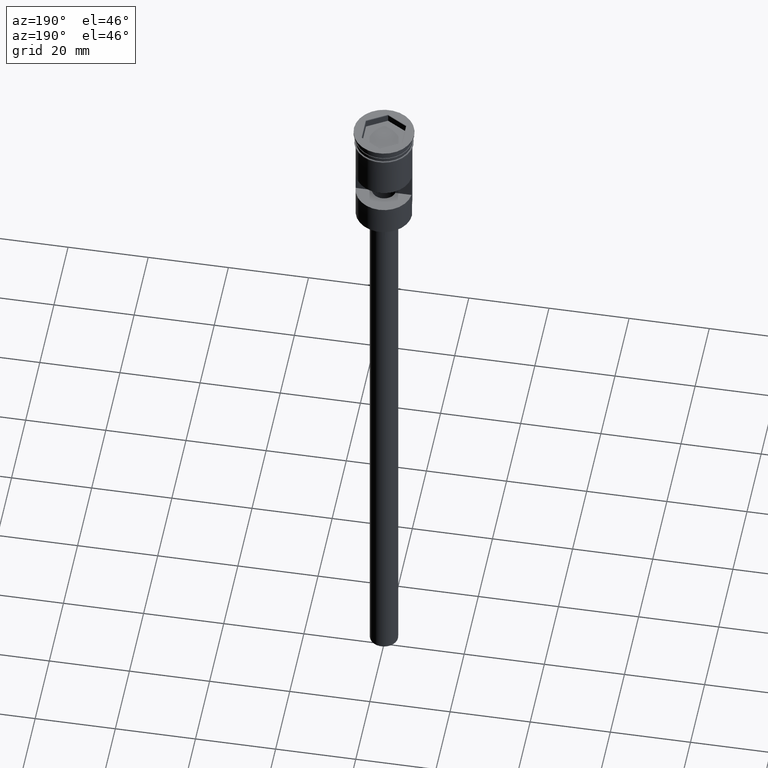
[diagram: clean part render]
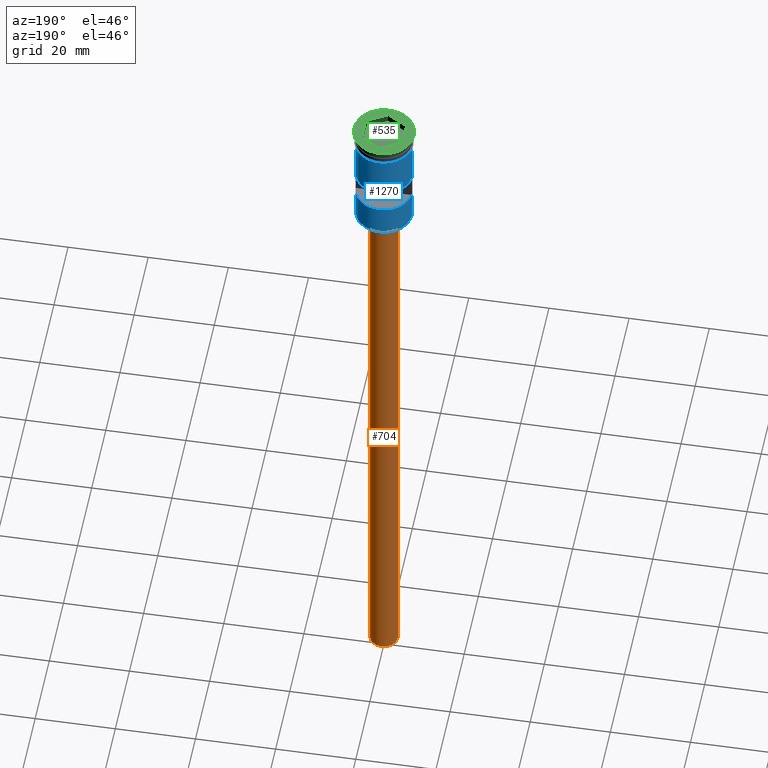
[diagram: same view with three faces highlighted in distinct colors, each labeled with its STEP entity id]
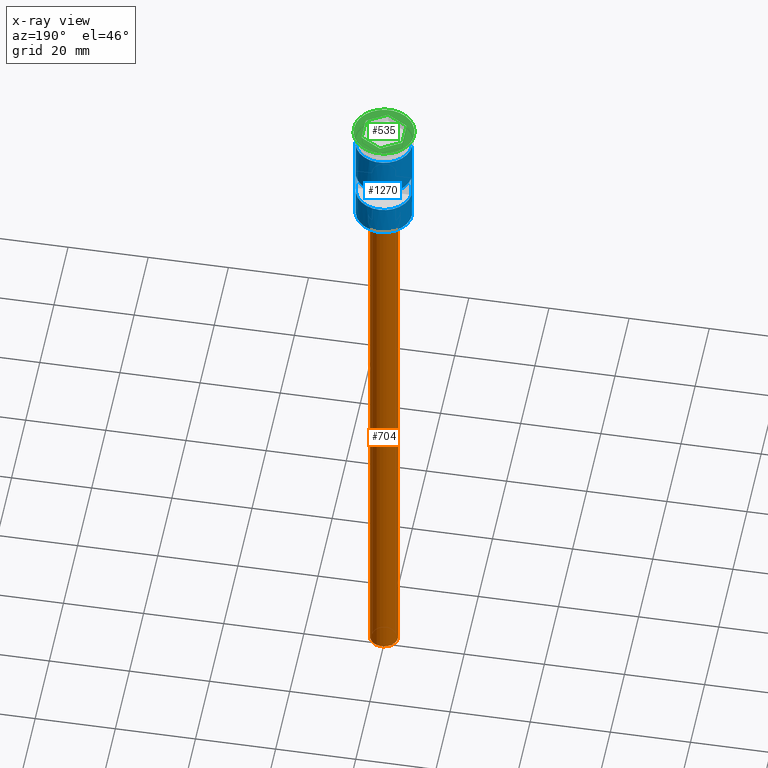
[diagram: x-ray of the same camera — body ghosted, the three highlighted faces saturated]
A machine part, auxiliary view with three faces highlighted in distinct colors.
The next image is the same camera in x-ray (body ghosted, the three faces saturated) — at least one of them is partly hidden behind the body in this view.
Their STEP definitions:

[orange] entity #704 — the highlighted cylindrical surface (edge-blend (fillet) strip) has radius 3.5 mm, axis along (-0, -0, 1).
#8 = CARTESIAN_POINT ( 'NONE',  ( 0.000000000000000000, 0.000000000000000000, -178.5000000000000000 ) ) ;
#28 = CYLINDRICAL_SURFACE ( 'NONE', #1307, 3.500000000000000444 ) ;
#30 = LINE ( 'NONE', #1141, #63 ) ;
#39 = EDGE_LOOP ( 'NONE', ( #1564, #598, #610, #1400 ) ) ;
#40 = AXIS2_PLACEMENT_3D ( 'NONE', #8, #1590, #226 ) ;
#63 = VECTOR ( 'NONE', #903, 1000.000000000000000 ) ;
#65 = FACE_OUTER_BOUND ( 'NONE', #39, .T. ) ;
#89 = EDGE_CURVE ( 'NONE', #1109, #631, #161, .T. ) ;
#123 = VERTEX_POINT ( 'NONE', #514 ) ;
#161 = CIRCLE ( 'NONE', #966, 3.500000000000000444 ) ;
#200 = CARTESIAN_POINT ( 'NONE',  ( 0.000000000000000000, 0.000000000000000000, -178.5000000000000000 ) ) ;
#226 = DIRECTION ( 'NONE',  ( -1.000000000000000000, 0.000000000000000000, 0.000000000000000000 ) ) ;
#230 = EDGE_CURVE ( 'NONE', #123, #631, #30, .T. ) ;
#380 = DIRECTION ( 'NONE',  ( 0.000000000000000000, 0.000000000000000000, -1.000000000000000000 ) ) ;
#389 = DIRECTION ( 'NONE',  ( 1.000000000000000000, 0.000000000000000000, 0.000000000000000000 ) ) ;
#463 = CARTESIAN_POINT ( 'NONE',  ( -3.500000000000000444, 4.286263797015737088E-16, -31.50000000000000000 ) ) ;
#506 = CARTESIAN_POINT ( 'NONE',  ( 0.000000000000000000, 0.000000000000000000, -31.50000000000000000 ) ) ;
#514 = CARTESIAN_POINT ( 'NONE',  ( 3.500000000000000444, 0.000000000000000000, -178.5000000000000000 ) ) ;
#531 = VECTOR ( 'NONE', #532, 1000.000000000000000 ) ;
#532 = DIRECTION ( 'NONE',  ( -0.000000000000000000, -0.000000000000000000, 1.000000000000000000 ) ) ;
#595 = EDGE_CURVE ( 'NONE', #1436, #123, #737, .T. ) ;
#598 = ORIENTED_EDGE ( 'NONE', *, *, #1023, .T. ) ;
#610 = ORIENTED_EDGE ( 'NONE', *, *, #89, .T. ) ;
#631 = VERTEX_POINT ( 'NONE', #1241 ) ;
#704 = ADVANCED_FACE ( 'NONE', ( #65 ), #28, .T. ) ;
#737 = CIRCLE ( 'NONE', #40, 3.500000000000000444 ) ;
#757 = LINE ( 'NONE', #907, #531 ) ;
#903 = DIRECTION ( 'NONE',  ( -0.000000000000000000, -0.000000000000000000, 1.000000000000000000 ) ) ;
#907 = CARTESIAN_POINT ( 'NONE',  ( -3.500000000000000444, 4.286263797015737088E-16, -178.5000000000000000 ) ) ;
#966 = AXIS2_PLACEMENT_3D ( 'NONE', #506, #380, #1135 ) ;
#1023 = EDGE_CURVE ( 'NONE', #1436, #1109, #757, .T. ) ;
#1109 = VERTEX_POINT ( 'NONE', #463 ) ;
#1135 = DIRECTION ( 'NONE',  ( -1.000000000000000000, 0.000000000000000000, 0.000000000000000000 ) ) ;
#1141 = CARTESIAN_POINT ( 'NONE',  ( 3.500000000000000444, 0.000000000000000000, -178.5000000000000000 ) ) ;
#1241 = CARTESIAN_POINT ( 'NONE',  ( 3.500000000000000444, 0.000000000000000000, -31.50000000000000000 ) ) ;
#1269 = DIRECTION ( 'NONE',  ( -0.000000000000000000, -0.000000000000000000, 1.000000000000000000 ) ) ;
#1307 = AXIS2_PLACEMENT_3D ( 'NONE', #200, #1269, #389 ) ;
#1400 = ORIENTED_EDGE ( 'NONE', *, *, #230, .F. ) ;
#1436 = VERTEX_POINT ( 'NONE', #1589 ) ;
#1564 = ORIENTED_EDGE ( 'NONE', *, *, #595, .F. ) ;
#1589 = CARTESIAN_POINT ( 'NONE',  ( -3.500000000000000444, 4.286263797015737088E-16, -178.5000000000000000 ) ) ;
#1590 = DIRECTION ( 'NONE',  ( 0.000000000000000000, 0.000000000000000000, -1.000000000000000000 ) ) ;

[blue] entity #1270 — the highlighted cylindrical surface (edge-blend (fillet) strip) has radius 7 mm, axis along (-0, -0, 1).
#18 = CIRCLE ( 'NONE', #145, 6.999999999999996447 ) ;
#35 = LINE ( 'NONE', #375, #1050 ) ;
#36 = CARTESIAN_POINT ( 'NONE',  ( 6.999999999999996447, 0.000000000000000000, 0.000000000000000000 ) ) ;
#38 = LINE ( 'NONE', #528, #137 ) ;
#75 = ORIENTED_EDGE ( 'NONE', *, *, #198, .F. ) ;
#84 = CARTESIAN_POINT ( 'NONE',  ( 6.999999999999999112, 0.000000000000000000, -3.799999999999998490 ) ) ;
#103 = VERTEX_POINT ( 'NONE', #130 ) ;
#112 = DIRECTION ( 'NONE',  ( 0.000000000000000000, 0.000000000000000000, -1.000000000000000000 ) ) ;
#129 = FACE_BOUND ( 'NONE', #1200, .T. ) ;
#130 = CARTESIAN_POINT ( 'NONE',  ( -6.974238309665074631, 0.5999999999999999778, -14.50000000000000178 ) ) ;
#132 = VERTEX_POINT ( 'NONE', #1112 ) ;
#137 = VECTOR ( 'NONE', #165, 1000.000000000000000 ) ;
#145 = AXIS2_PLACEMENT_3D ( 'NONE', #821, #1314, #1192 ) ;
#150 = LINE ( 'NONE', #283, #1071 ) ;
#152 = ORIENTED_EDGE ( 'NONE', *, *, #713, .F. ) ;
#158 = EDGE_CURVE ( 'NONE', #1091, #1430, #354, .T. ) ;
#165 = DIRECTION ( 'NONE',  ( -0.000000000000000000, -0.000000000000000000, 1.000000000000000000 ) ) ;
#198 = EDGE_CURVE ( 'NONE', #674, #103, #150, .T. ) ;
#248 = VECTOR ( 'NONE', #908, 1000.000000000000000 ) ;
#251 = LINE ( 'NONE', #511, #451 ) ;
#276 = ORIENTED_EDGE ( 'NONE', *, *, #323, .T. ) ;
#279 = DIRECTION ( 'NONE',  ( -0.000000000000000000, -0.000000000000000000, 1.000000000000000000 ) ) ;
#283 = CARTESIAN_POINT ( 'NONE',  ( -6.974238309665074631, 0.5999999999999999778, 0.000000000000000000 ) ) ;
#306 = CARTESIAN_POINT ( 'NONE',  ( -6.974238309665074631, 0.5999999999999999778, -20.50000000000000000 ) ) ;
#318 = ORIENTED_EDGE ( 'NONE', *, *, #953, .T. ) ;
#323 = EDGE_CURVE ( 'NONE', #1339, #811, #38, .T. ) ;
#344 = CARTESIAN_POINT ( 'NONE',  ( 0.000000000000000000, 0.000000000000000000, -28.29999999999999361 ) ) ;
#354 = LINE ( 'NONE', #1122, #969 ) ;
#373 = AXIS2_PLACEMENT_3D ( 'NONE', #978, #1348, #1111 ) ;
#375 = CARTESIAN_POINT ( 'NONE',  ( 6.999999999999993783, 8.572527594031465301E-16, -28.50000000000000000 ) ) ;
#377 = CARTESIAN_POINT ( 'NONE',  ( 6.974238309665075519, 0.5999999999999999778, -20.50000000000000000 ) ) ;
#388 = DIRECTION ( 'NONE',  ( 0.000000000000000000, -1.000000000000000000, 2.478176394252582620E-16 ) ) ;
#451 = VECTOR ( 'NONE', #279, 1000.000000000000000 ) ;
#476 = VERTEX_POINT ( 'NONE', #84 ) ;
#494 = CARTESIAN_POINT ( 'NONE',  ( -6.999999999999993783, 0.000000000000000000, -24.29999999999998295 ) ) ;
#504 = CYLINDRICAL_SURFACE ( 'NONE', #373, 6.999999999999996447 ) ;
#511 = CARTESIAN_POINT ( 'NONE',  ( -6.999999999999993783, 0.000000000000000000, -28.50000000000000000 ) ) ;
#528 = CARTESIAN_POINT ( 'NONE',  ( -6.999999999999996447, 8.572527594031468259E-16, 0.000000000000000000 ) ) ;
#536 = CARTESIAN_POINT ( 'NONE',  ( 0.000000000000000000, 0.000000000000000000, -14.50000000000000178 ) ) ;
#565 = EDGE_CURVE ( 'NONE', #132, #1319, #636, .T. ) ;
#632 = AXIS2_PLACEMENT_3D ( 'NONE', #1556, #813, #1386 ) ;
#636 = CIRCLE ( 'NONE', #1046, 6.999999999999996447 ) ;
#655 = LINE ( 'NONE', #36, #248 ) ;
#674 = VERTEX_POINT ( 'NONE', #306 ) ;
#692 = CIRCLE ( 'NONE', #1569, 6.999999999999996447 ) ;
#712 = CARTESIAN_POINT ( 'NONE',  ( -7.000000000000000000, 8.572527594031472204E-16, -3.799999999999998490 ) ) ;
#713 = EDGE_CURVE ( 'NONE', #476, #811, #816, .T. ) ;
#791 = CARTESIAN_POINT ( 'NONE',  ( 6.999999999999996447, 8.572527594031468259E-16, -24.29999999999998295 ) ) ;
#793 = DIRECTION ( 'NONE',  ( -0.000000000000000000, -0.000000000000000000, 1.000000000000000000 ) ) ;
#811 = VERTEX_POINT ( 'NONE', #712 ) ;
#813 = DIRECTION ( 'NONE',  ( -0.000000000000000000, -0.000000000000000000, 1.000000000000000000 ) ) ;
#816 = CIRCLE ( 'NONE', #632, 6.999999999999999112 ) ;
#821 = CARTESIAN_POINT ( 'NONE',  ( 0.000000000000000000, 0.000000000000000000, -20.50000000000000000 ) ) ;
#859 = CARTESIAN_POINT ( 'NONE',  ( -6.999999999999993783, 0.000000000000000000, -28.29999999999999361 ) ) ;
#864 = DIRECTION ( 'NONE',  ( -1.000000000000000000, 0.000000000000000000, 0.000000000000000000 ) ) ;
#887 = ORIENTED_EDGE ( 'NONE', *, *, #1193, .F. ) ;
#908 = DIRECTION ( 'NONE',  ( -0.000000000000000000, -0.000000000000000000, 1.000000000000000000 ) ) ;
#931 = ORIENTED_EDGE ( 'NONE', *, *, #1440, .F. ) ;
#953 = EDGE_CURVE ( 'NONE', #1319, #1339, #251, .T. ) ;
#963 = EDGE_CURVE ( 'NONE', #132, #1480, #35, .T. ) ;
#969 = VECTOR ( 'NONE', #112, 1000.000000000000000 ) ;
#970 = ORIENTED_EDGE ( 'NONE', *, *, #565, .T. ) ;
#978 = CARTESIAN_POINT ( 'NONE',  ( 0.000000000000000000, 0.000000000000000000, 0.000000000000000000 ) ) ;
#1046 = AXIS2_PLACEMENT_3D ( 'NONE', #344, #1470, #864 ) ;
#1050 = VECTOR ( 'NONE', #1281, 1000.000000000000000 ) ;
#1071 = VECTOR ( 'NONE', #793, 1000.000000000000000 ) ;
#1091 = VERTEX_POINT ( 'NONE', #1442 ) ;
#1111 = DIRECTION ( 'NONE',  ( 1.000000000000000000, 0.000000000000000000, 0.000000000000000000 ) ) ;
#1112 = CARTESIAN_POINT ( 'NONE',  ( 6.999999999999993783, 8.572527594031465301E-16, -28.29999999999999361 ) ) ;
#1115 = EDGE_LOOP ( 'NONE', ( #318, #276, #152, #1313, #1526, #970 ) ) ;
#1122 = CARTESIAN_POINT ( 'NONE',  ( 6.974238309665074631, 0.5999999999999999778, 0.000000000000000000 ) ) ;
#1192 = DIRECTION ( 'NONE',  ( 0.000000000000000000, 1.000000000000000000, 4.956352788505165240E-16 ) ) ;
#1193 = EDGE_CURVE ( 'NONE', #1430, #674, #18, .T. ) ;
#1200 = EDGE_LOOP ( 'NONE', ( #887, #1451, #931, #75 ) ) ;
#1256 = DIRECTION ( 'NONE',  ( -0.000000000000000000, -2.710505431213763057E-16, -1.000000000000000000 ) ) ;
#1270 = ADVANCED_FACE ( 'NONE', ( #129, #1591 ), #504, .T. ) ;
#1281 = DIRECTION ( 'NONE',  ( -0.000000000000000000, -0.000000000000000000, 1.000000000000000000 ) ) ;
#1313 = ORIENTED_EDGE ( 'NONE', *, *, #1546, .F. ) ;
#1314 = DIRECTION ( 'NONE',  ( -0.000000000000000000, -5.421010862427526114E-16, 1.000000000000000000 ) ) ;
#1319 = VERTEX_POINT ( 'NONE', #859 ) ;
#1339 = VERTEX_POINT ( 'NONE', #494 ) ;
#1348 = DIRECTION ( 'NONE',  ( -0.000000000000000000, -0.000000000000000000, 1.000000000000000000 ) ) ;
#1386 = DIRECTION ( 'NONE',  ( 1.000000000000000000, 0.000000000000000000, 0.000000000000000000 ) ) ;
#1430 = VERTEX_POINT ( 'NONE', #377 ) ;
#1440 = EDGE_CURVE ( 'NONE', #103, #1091, #692, .T. ) ;
#1442 = CARTESIAN_POINT ( 'NONE',  ( 6.974238309665075519, 0.5999999999999999778, -14.50000000000000178 ) ) ;
#1451 = ORIENTED_EDGE ( 'NONE', *, *, #158, .F. ) ;
#1470 = DIRECTION ( 'NONE',  ( 0.000000000000000000, 0.000000000000000000, 1.000000000000000000 ) ) ;
#1480 = VERTEX_POINT ( 'NONE', #791 ) ;
#1526 = ORIENTED_EDGE ( 'NONE', *, *, #963, .F. ) ;
#1546 = EDGE_CURVE ( 'NONE', #1480, #476, #655, .T. ) ;
#1556 = CARTESIAN_POINT ( 'NONE',  ( 0.000000000000000000, 0.000000000000000000, -3.799999999999998490 ) ) ;
#1569 = AXIS2_PLACEMENT_3D ( 'NONE', #536, #1256, #388 ) ;
#1591 = FACE_OUTER_BOUND ( 'NONE', #1115, .T. ) ;

[green] entity #535 — the highlighted planar face has unit normal (0, -0, 1).
#50 = EDGE_LOOP ( 'NONE', ( #263, #1461 ) ) ;
#60 = EDGE_CURVE ( 'NONE', #555, #844, #107, .T. ) ;
#93 = LINE ( 'NONE', #1084, #1524 ) ;
#107 = LINE ( 'NONE', #1472, #293 ) ;
#111 = CARTESIAN_POINT ( 'NONE',  ( 0.000000000000000000, 0.000000000000000000, 0.000000000000000000 ) ) ;
#176 = EDGE_CURVE ( 'NONE', #1501, #555, #860, .T. ) ;
#204 = ORIENTED_EDGE ( 'NONE', *, *, #176, .T. ) ;
#222 = ORIENTED_EDGE ( 'NONE', *, *, #1456, .T. ) ;
#252 = CARTESIAN_POINT ( 'NONE',  ( 0.000000000000000000, 0.000000000000000000, 0.000000000000000000 ) ) ;
#263 = ORIENTED_EDGE ( 'NONE', *, *, #1253, .T. ) ;
#271 = DIRECTION ( 'NONE',  ( -0.8660254037844387076, -0.4999999999999998890, 0.000000000000000000 ) ) ;
#288 = LINE ( 'NONE', #1287, #875 ) ;
#293 = VECTOR ( 'NONE', #1106, 1000.000000000000114 ) ;
#325 = LINE ( 'NONE', #331, #608 ) ;
#331 = CARTESIAN_POINT ( 'NONE',  ( 5.050000000000000711, 2.973353886326576045, 0.000000000000000000 ) ) ;
#341 = EDGE_CURVE ( 'NONE', #844, #1188, #325, .T. ) ;
#356 = LINE ( 'NONE', #862, #1396 ) ;
#368 = DIRECTION ( 'NONE',  ( 1.000000000000000000, 0.000000000000000000, 0.000000000000000000 ) ) ;
#378 = PLANE ( 'NONE',  #1263 ) ;
#383 = ORIENTED_EDGE ( 'NONE', *, *, #341, .T. ) ;
#475 = CARTESIAN_POINT ( 'NONE',  ( 5.100000000000001421, -2.944486372867094026, 0.000000000000000000 ) ) ;
#480 = DIRECTION ( 'NONE',  ( -0.000000000000000000, -0.000000000000000000, 1.000000000000000000 ) ) ;
#492 = DIRECTION ( 'NONE',  ( -0.000000000000000000, -0.000000000000000000, 1.000000000000000000 ) ) ;
#513 = DIRECTION ( 'NONE',  ( 1.000000000000000000, 0.000000000000000000, 0.000000000000000000 ) ) ;
#535 = ADVANCED_FACE ( 'NONE', ( #999, #977 ), #378, .T. ) ;
#555 = VERTEX_POINT ( 'NONE', #1353 ) ;
#601 = DIRECTION ( 'NONE',  ( 0.000000000000000000, -0.000000000000000000, 1.000000000000000000 ) ) ;
#608 = VECTOR ( 'NONE', #1580, 1000.000000000000000 ) ;
#739 = ORIENTED_EDGE ( 'NONE', *, *, #1223, .T. ) ;
#744 = CIRCLE ( 'NONE', #927, 7.500000000000000000 ) ;
#789 = VERTEX_POINT ( 'NONE', #475 ) ;
#826 = AXIS2_PLACEMENT_3D ( 'NONE', #873, #492, #1484 ) ;
#833 = VERTEX_POINT ( 'NONE', #839 ) ;
#839 = CARTESIAN_POINT ( 'NONE',  ( 7.500000000000000000, 0.000000000000000000, 0.000000000000000000 ) ) ;
#844 = VERTEX_POINT ( 'NONE', #1578 ) ;
#860 = LINE ( 'NONE', #1500, #1391 ) ;
#862 = CARTESIAN_POINT ( 'NONE',  ( 5.100000000000001421, -2.886751345948129543, 0.000000000000000000 ) ) ;
#873 = CARTESIAN_POINT ( 'NONE',  ( 0.000000000000000000, 0.000000000000000000, 0.000000000000000000 ) ) ;
#875 = VECTOR ( 'NONE', #271, 1000.000000000000000 ) ;
#900 = EDGE_CURVE ( 'NONE', #1188, #789, #356, .T. ) ;
#927 = AXIS2_PLACEMENT_3D ( 'NONE', #111, #480, #368 ) ;
#962 = ORIENTED_EDGE ( 'NONE', *, *, #60, .T. ) ;
#977 = FACE_OUTER_BOUND ( 'NONE', #50, .T. ) ;
#999 = FACE_BOUND ( 'NONE', #1069, .T. ) ;
#1069 = EDGE_LOOP ( 'NONE', ( #204, #962, #383, #1475, #222, #739 ) ) ;
#1084 = CARTESIAN_POINT ( 'NONE',  ( -5.049999999999999822, -2.973353886326575601, 0.000000000000000000 ) ) ;
#1106 = DIRECTION ( 'NONE',  ( 0.8660254037844385966, 0.4999999999999999445, 0.000000000000000000 ) ) ;
#1188 = VERTEX_POINT ( 'NONE', #1199 ) ;
#1199 = CARTESIAN_POINT ( 'NONE',  ( 5.100000000000001421, 2.944486372867094470, 0.000000000000000000 ) ) ;
#1223 = EDGE_CURVE ( 'NONE', #1547, #1501, #93, .T. ) ;
#1239 = CIRCLE ( 'NONE', #826, 7.500000000000000000 ) ;
#1253 = EDGE_CURVE ( 'NONE', #833, #1382, #744, .T. ) ;
#1263 = AXIS2_PLACEMENT_3D ( 'NONE', #252, #601, #513 ) ;
#1283 = CARTESIAN_POINT ( 'NONE',  ( 6.485146259703940858E-16, -5.888972745734185388, 0.000000000000000000 ) ) ;
#1287 = CARTESIAN_POINT ( 'NONE',  ( 0.05000000000000229955, -5.860105232274703368, 0.000000000000000000 ) ) ;
#1353 = CARTESIAN_POINT ( 'NONE',  ( -5.100000000000001421, 2.944486372867091806, 0.000000000000000000 ) ) ;
#1382 = VERTEX_POINT ( 'NONE', #1508 ) ;
#1391 = VECTOR ( 'NONE', #1601, 1000.000000000000000 ) ;
#1396 = VECTOR ( 'NONE', #1459, 1000.000000000000000 ) ;
#1410 = CARTESIAN_POINT ( 'NONE',  ( -5.100000000000001421, -2.944486372867093582, 0.000000000000000000 ) ) ;
#1423 = EDGE_CURVE ( 'NONE', #1382, #833, #1239, .T. ) ;
#1456 = EDGE_CURVE ( 'NONE', #789, #1547, #288, .T. ) ;
#1459 = DIRECTION ( 'NONE',  ( 0.000000000000000000, -1.000000000000000000, -0.000000000000000000 ) ) ;
#1461 = ORIENTED_EDGE ( 'NONE', *, *, #1423, .T. ) ;
#1472 = CARTESIAN_POINT ( 'NONE',  ( -0.05000000000000093953, 5.860105232274702480, 0.000000000000000000 ) ) ;
#1475 = ORIENTED_EDGE ( 'NONE', *, *, #900, .T. ) ;
#1484 = DIRECTION ( 'NONE',  ( 1.000000000000000000, 0.000000000000000000, 0.000000000000000000 ) ) ;
#1500 = CARTESIAN_POINT ( 'NONE',  ( -5.100000000000001421, 2.886751345948128655, 0.000000000000000000 ) ) ;
#1501 = VERTEX_POINT ( 'NONE', #1410 ) ;
#1508 = CARTESIAN_POINT ( 'NONE',  ( -7.500000000000000000, 9.184850993605147944E-16, 0.000000000000000000 ) ) ;
#1524 = VECTOR ( 'NONE', #1576, 1000.000000000000000 ) ;
#1547 = VERTEX_POINT ( 'NONE', #1283 ) ;
#1576 = DIRECTION ( 'NONE',  ( -0.8660254037844387076, 0.4999999999999998335, 0.000000000000000000 ) ) ;
#1578 = CARTESIAN_POINT ( 'NONE',  ( 4.725224118234917529E-17, 5.888972745734183611, 0.000000000000000000 ) ) ;
#1580 = DIRECTION ( 'NONE',  ( 0.8660254037844388186, -0.4999999999999996669, 0.000000000000000000 ) ) ;
#1601 = DIRECTION ( 'NONE',  ( 0.000000000000000000, 1.000000000000000000, 0.000000000000000000 ) ) ;